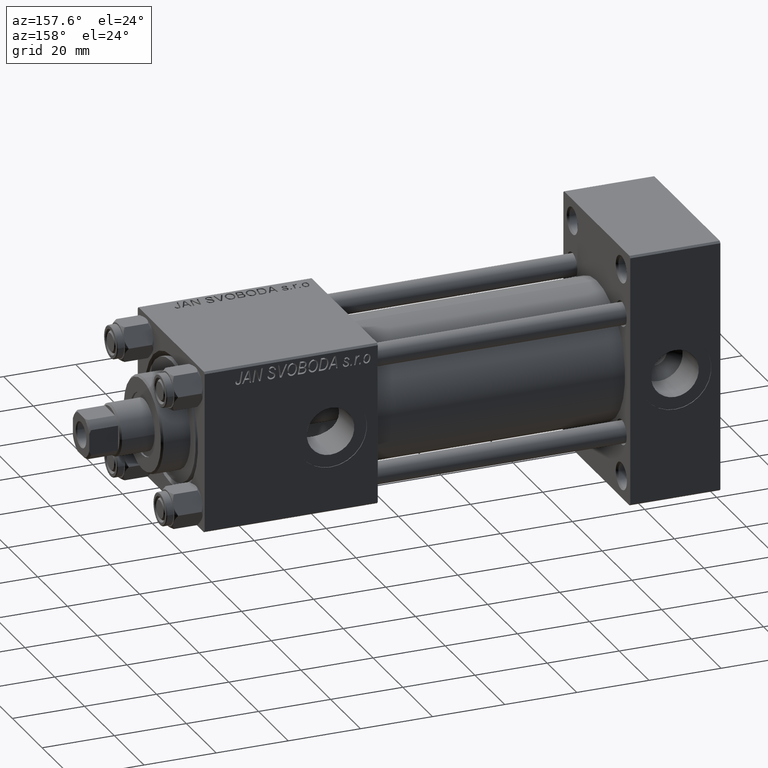
[diagram: clean part render]
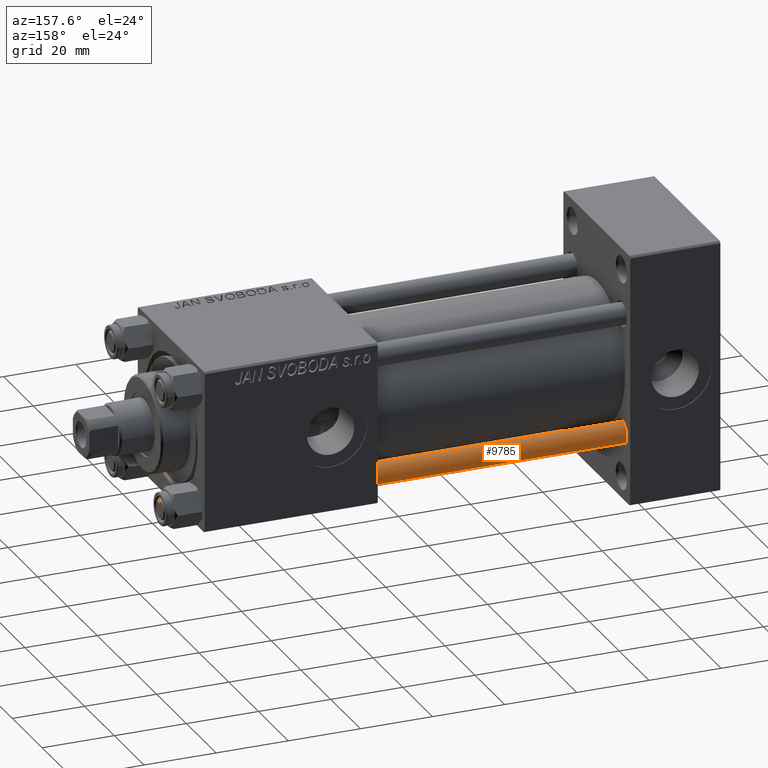
[diagram: same view with one face highlighted and labeled with its STEP entity id]
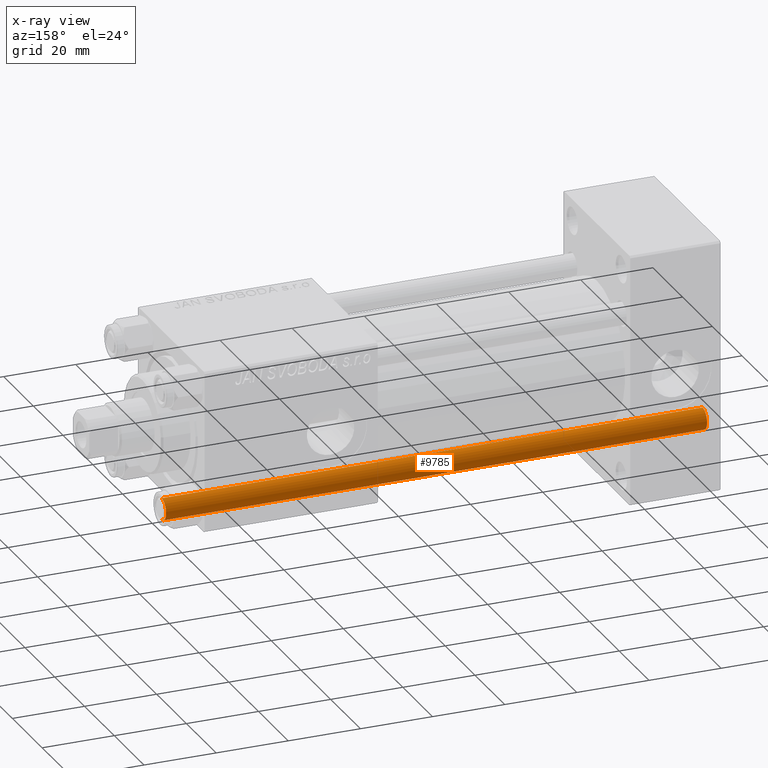
[diagram: x-ray of the same camera — body ghosted, the highlighted face saturated]
A machine part, auxiliary view. The second image highlights one B-rep face of the part: STEP entity #9785.
The next image is the same camera in x-ray: the body ghosted, the highlighted face saturated — about 0% of this face is hidden behind the body in this view.
In plain terms, the highlighted cylindrical surface (edge-blend (fillet) strip) has radius 3 mm, axis along (-1, 0, 0).
Its self-contained STEP definition (entity closure, byte-faithful):
#1818 = LINE ( 'NONE', #9409, #39802 ) ;
#5112 = FACE_OUTER_BOUND ( 'NONE', #37281, .T. ) ;
#5963 = AXIS2_PLACEMENT_3D ( 'NONE', #21220, #28564, #9351 ) ;
#9351 = DIRECTION ( 'NONE',  ( 1.000000000000000000, 0.000000000000000000, 0.000000000000000000 ) ) ;
#9409 = CARTESIAN_POINT ( 'NONE',  ( 3.000000000000000444, 3.673940397442060361E-16, 151.0000000000000000 ) ) ;
#9785 = ADVANCED_FACE ( 'NONE', ( #5112 ), #48060, .T. ) ;
#15965 = ORIENTED_EDGE ( 'NONE', *, *, #19099, .F. ) ;
#17006 = CARTESIAN_POINT ( 'NONE',  ( 0.000000000000000000, 0.000000000000000000, 151.0000000000000000 ) ) ;
#17713 = DIRECTION ( 'NONE',  ( -0.000000000000000000, -0.000000000000000000, -1.000000000000000000 ) ) ;
#17723 = CARTESIAN_POINT ( 'NONE',  ( -3.000000000000000444, 0.000000000000000000, 150.5000000000000284 ) ) ;
#19099 = EDGE_CURVE ( 'NONE', #24457, #33826, #1818, .T. ) ;
#20414 = VECTOR ( 'NONE', #17713, 1000.000000000000000 ) ;
#20540 = EDGE_CURVE ( 'NONE', #49954, #33826, #27768, .T. ) ;
#21220 = CARTESIAN_POINT ( 'NONE',  ( 0.000000000000000000, 0.000000000000000000, 0.5000000000000004441 ) ) ;
#23740 = ORIENTED_EDGE ( 'NONE', *, *, #20540, .T. ) ;
#24457 = VERTEX_POINT ( 'NONE', #45100 ) ;
#25240 = EDGE_CURVE ( 'NONE', #24457, #25965, #31867, .T. ) ;
#25965 = VERTEX_POINT ( 'NONE', #17723 ) ;
#27768 = CIRCLE ( 'NONE', #5963, 3.000000000000000444 ) ;
#28376 = DIRECTION ( 'NONE',  ( -1.000000000000000000, 0.000000000000000000, 0.000000000000000000 ) ) ;
#28564 = DIRECTION ( 'NONE',  ( -0.000000000000000000, -0.000000000000000000, 1.000000000000000000 ) ) ;
#28637 = AXIS2_PLACEMENT_3D ( 'NONE', #44115, #39836, #32007 ) ;
#31446 = AXIS2_PLACEMENT_3D ( 'NONE', #17006, #36459, #28376 ) ;
#31867 = CIRCLE ( 'NONE', #28637, 3.000000000000000444 ) ;
#32007 = DIRECTION ( 'NONE',  ( 1.000000000000000000, 0.000000000000000000, 0.000000000000000000 ) ) ;
#32888 = LINE ( 'NONE', #45221, #20414 ) ;
#33826 = VERTEX_POINT ( 'NONE', #37342 ) ;
#34759 = EDGE_CURVE ( 'NONE', #25965, #49954, #32888, .T. ) ;
#36459 = DIRECTION ( 'NONE',  ( -0.000000000000000000, -0.000000000000000000, -1.000000000000000000 ) ) ;
#37281 = EDGE_LOOP ( 'NONE', ( #15965, #43755, #42691, #23740 ) ) ;
#37342 = CARTESIAN_POINT ( 'NONE',  ( 3.000000000000000444, 3.673940397442060361E-16, 0.5000000000000004441 ) ) ;
#39802 = VECTOR ( 'NONE', #40230, 1000.000000000000000 ) ;
#39836 = DIRECTION ( 'NONE',  ( 0.000000000000000000, 0.000000000000000000, -1.000000000000000000 ) ) ;
#40094 = CARTESIAN_POINT ( 'NONE',  ( -3.000000000000000444, 0.000000000000000000, 0.5000000000000004441 ) ) ;
#40230 = DIRECTION ( 'NONE',  ( -0.000000000000000000, -0.000000000000000000, -1.000000000000000000 ) ) ;
#42691 = ORIENTED_EDGE ( 'NONE', *, *, #34759, .T. ) ;
#43755 = ORIENTED_EDGE ( 'NONE', *, *, #25240, .T. ) ;
#44115 = CARTESIAN_POINT ( 'NONE',  ( 0.000000000000000000, 0.000000000000000000, 150.5000000000000284 ) ) ;
#45100 = CARTESIAN_POINT ( 'NONE',  ( 3.000000000000000444, 3.673940397442060361E-16, 150.5000000000000284 ) ) ;
#45221 = CARTESIAN_POINT ( 'NONE',  ( -3.000000000000000444, 0.000000000000000000, 151.0000000000000000 ) ) ;
#48060 = CYLINDRICAL_SURFACE ( 'NONE', #31446, 3.000000000000000444 ) ;
#49954 = VERTEX_POINT ( 'NONE', #40094 ) ;